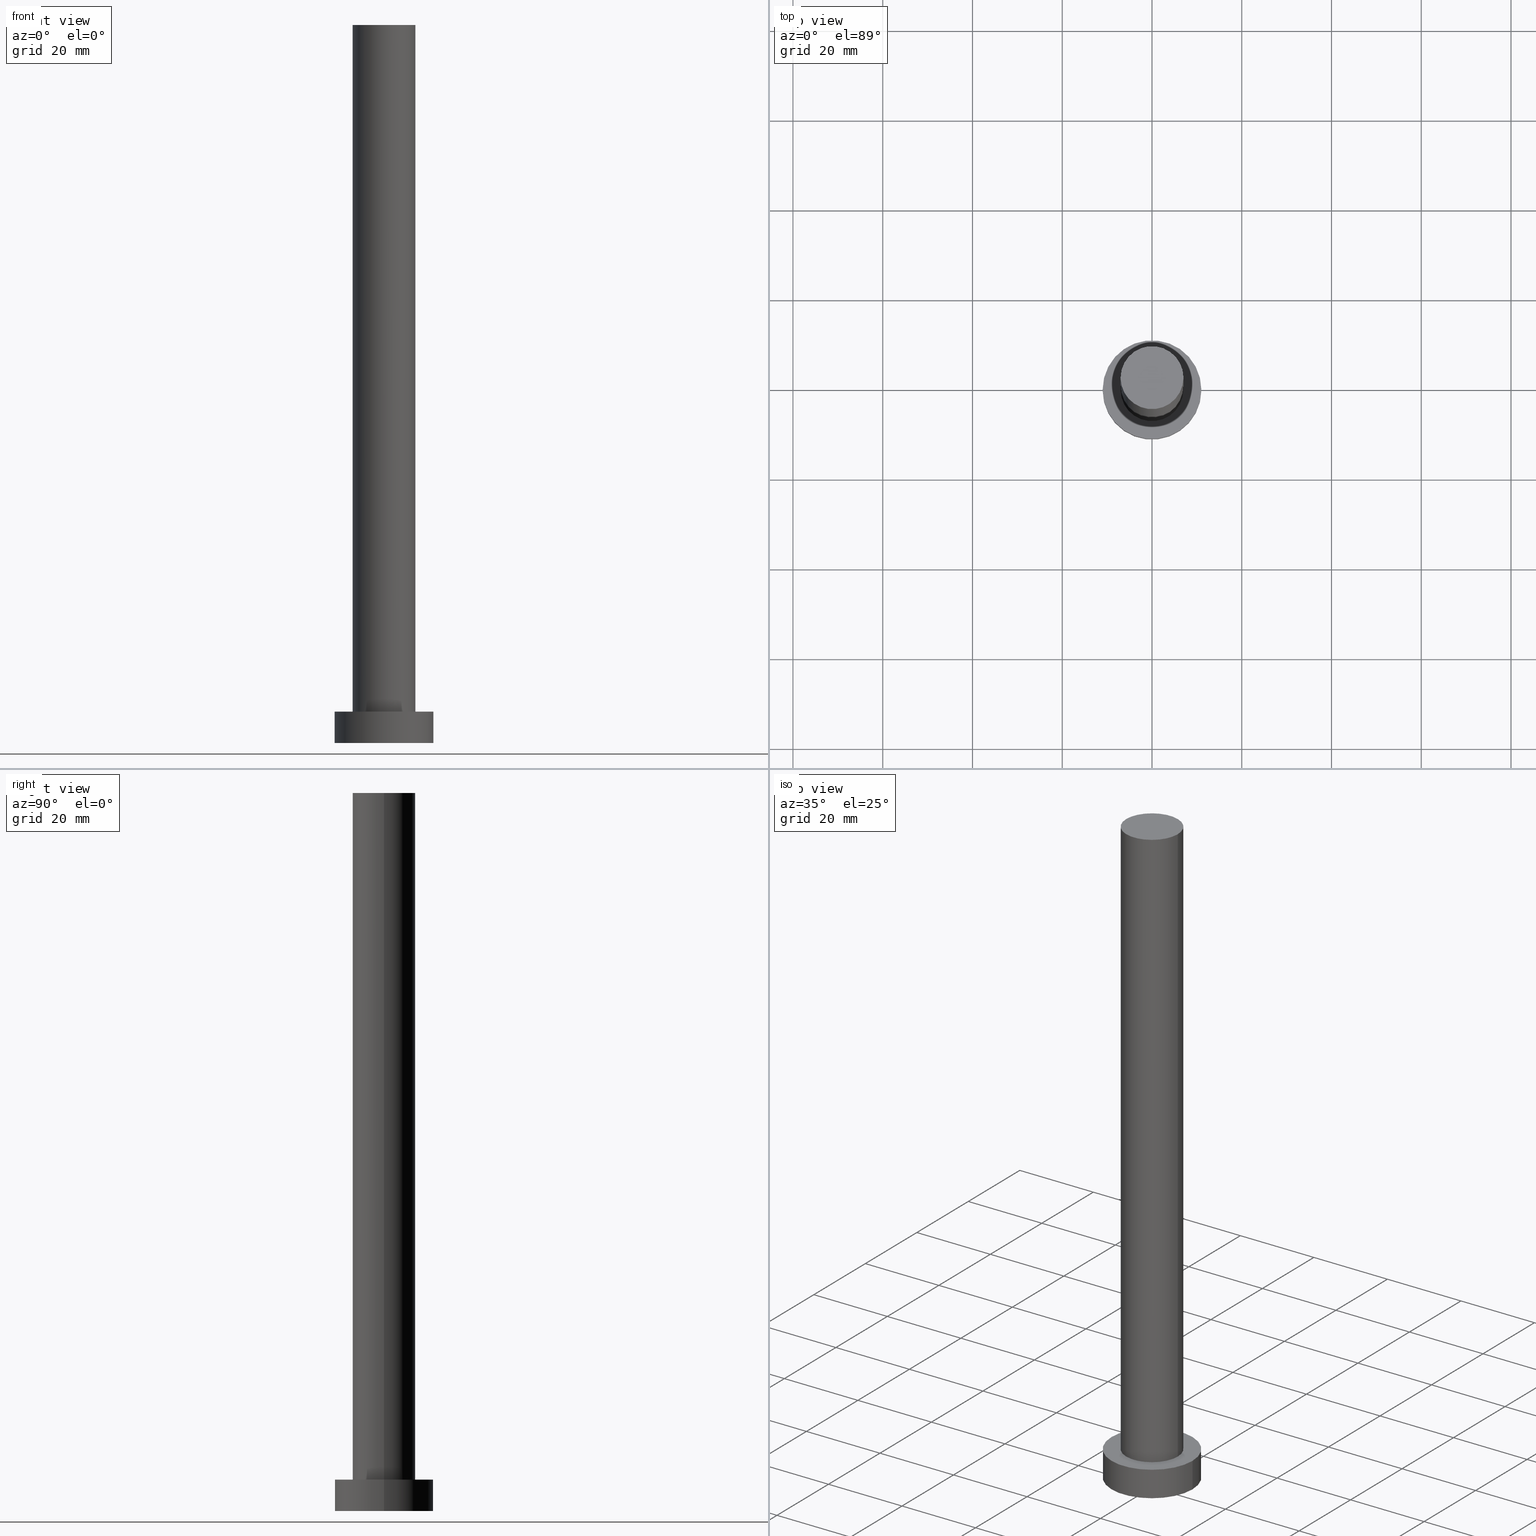
[diagram: canonical four-view strip — front | top / right | iso, engineering-drawing reading convention]
A machine part, canonical four-view strip (front | top / right | iso — engineering-drawing reading convention). The complete STEP part file that produces these views, byte-faithful:
ISO-10303-21;
HEADER;
FILE_DESCRIPTION (( 'STEP AP203' ),
    '1' );
FILE_NAME ('a273.STEP',
    '2023-02-12T10:48:04',
    ( '' ),
    ( '' ),
    'SwSTEP 2.0',
    'SolidWorks 2019',
    '' );
FILE_SCHEMA (( 'CONFIG_CONTROL_DESIGN' ));
ENDSEC;

DATA;
#1 = CARTESIAN_POINT ( 'NONE',  ( 7.000000000000000000, 8.572527594031473190E-16, 7.000000000000000000 ) ) ;
#2 = PERSON_AND_ORGANIZATION_ROLE ( 'creator' ) ;
#3 = ADVANCED_FACE ( 'NONE', ( #145, #10 ), #228, .T. ) ;
#4 = PERSON_AND_ORGANIZATION ( #49, #208 ) ;
#5 = ORIENTED_EDGE ( 'NONE', *, *, #206, .T. ) ;
#6 = EDGE_LOOP ( 'NONE', ( #242, #127, #149, #130 ) ) ;
#7 = DATE_AND_TIME ( #188, #246 ) ;
#8 = CARTESIAN_POINT ( 'NONE',  ( -11.00000000000000000, 0.000000000000000000, 7.000000000000000000 ) ) ;
#9 = VECTOR ( 'NONE', #216, 1000.000000000000000 ) ;
#10 = FACE_OUTER_BOUND ( 'NONE', #32, .T. ) ;
#11 = CC_DESIGN_PERSON_AND_ORGANIZATION_ASSIGNMENT ( #121, #2, ( #45 ) ) ;
#12 = CARTESIAN_POINT ( 'NONE',  ( 0.000000000000000000, 0.000000000000000000, 160.0000000000000000 ) ) ;
#13 = CARTESIAN_POINT ( 'NONE',  ( 0.000000000000000000, 0.000000000000000000, 7.000000000000000000 ) ) ;
#14 = CARTESIAN_POINT ( 'NONE',  ( 0.000000000000000000, 0.000000000000000000, 0.000000000000000000 ) ) ;
#15 = AXIS2_PLACEMENT_3D ( 'NONE', #196, #111, #195 ) ;
#16 = CARTESIAN_POINT ( 'NONE',  ( -11.00000000000000000, 0.000000000000000000, 0.000000000000000000 ) ) ;
#17 = CARTESIAN_POINT ( 'NONE',  ( -7.000000000000000000, 0.000000000000000000, 160.0000000000000000 ) ) ;
#18 =( NAMED_UNIT ( * ) PLANE_ANGLE_UNIT ( ) SI_UNIT ( $, .RADIAN. ) );
#19 = DATE_AND_TIME ( #137, #27 ) ;
#20 = APPROVAL_DATE_TIME ( #209, #129 ) ;
#21 = ADVANCED_FACE ( 'NONE', ( #229 ), #33, .T. ) ;
#22 = CIRCLE ( 'NONE', #115, 11.00000000000000000 ) ;
#23 = AXIS2_PLACEMENT_3D ( 'NONE', #116, #100, #233 ) ;
#24 = DATE_TIME_ROLE ( 'creation_date' ) ;
#25 = ORIENTED_EDGE ( 'NONE', *, *, #220, .F. ) ;
#26 = VERTEX_POINT ( 'NONE', #250 ) ;
#27 = LOCAL_TIME ( 11, 48, 4.000000000000000000, #163 ) ;
#28 = FACE_OUTER_BOUND ( 'NONE', #243, .T. ) ;
#29 = DIRECTION ( 'NONE',  ( 1.000000000000000000, 0.000000000000000000, 0.000000000000000000 ) ) ;
#30 = EDGE_LOOP ( 'NONE', ( #67, #110 ) ) ;
#31 = ADVANCED_FACE ( 'NONE', ( #28 ), #113, .T. ) ;
#32 = EDGE_LOOP ( 'NONE', ( #153, #52 ) ) ;
#33 = CYLINDRICAL_SURFACE ( 'NONE', #165, 11.00000000000000000 ) ;
#34 = CARTESIAN_POINT ( 'NONE',  ( 11.00000000000000000, 1.347111479062088405E-15, 0.000000000000000000 ) ) ;
#35 = UNCERTAINTY_MEASURE_WITH_UNIT (LENGTH_MEASURE( 1.000000000000000082E-05 ), #36, 'distance_accuracy_value', 'NONE');
#36 =( LENGTH_UNIT ( ) NAMED_UNIT ( * ) SI_UNIT ( .MILLI., .METRE. ) );
#37 = AXIS2_PLACEMENT_3D ( 'NONE', #86, #162, #222 ) ;
#38 = CIRCLE ( 'NONE', #204, 11.00000000000000000 ) ;
#39 = CARTESIAN_POINT ( 'NONE',  ( -7.000000000000000000, 0.000000000000000000, 160.0000000000000000 ) ) ;
#40 = PERSON_AND_ORGANIZATION ( #49, #208 ) ;
#41 = PERSON_AND_ORGANIZATION_ROLE ( 'creator' ) ;
#42 = APPROVAL_DATE_TIME ( #184, #192 ) ;
#43 = ADVANCED_FACE ( 'NONE', ( #50 ), #168, .T. ) ;
#44 = VECTOR ( 'NONE', #235, 1000.000000000000000 ) ;
#45 = PRODUCT_DEFINITION ( 'NEZN�M�', '', #104, #97 ) ;
#46 = LINE ( 'NONE', #8, #147 ) ;
#47 = APPROVAL_DATE_TIME ( #7, #80 ) ;
#48 = CC_DESIGN_SECURITY_CLASSIFICATION ( #238, ( #104 ) ) ;
#49 = PERSON ( 'NEUR�EN�', 'NEUR�EN�', 'NEUR�EN�', ('NEUR�EN�'), ('NEUR�EN�'), ('NEUR�EN�') ) ;
#50 = FACE_OUTER_BOUND ( 'NONE', #247, .T. ) ;
#51 = EDGE_CURVE ( 'NONE', #26, #248, #154, .T. ) ;
#52 = ORIENTED_EDGE ( 'NONE', *, *, #93, .T. ) ;
#53 = CARTESIAN_POINT ( 'NONE',  ( 0.000000000000000000, 0.000000000000000000, 160.0000000000000000 ) ) ;
#54 = DIRECTION ( 'NONE',  ( -0.000000000000000000, -0.000000000000000000, -1.000000000000000000 ) ) ;
#55 = DIRECTION ( 'NONE',  ( 0.000000000000000000, 0.000000000000000000, 1.000000000000000000 ) ) ;
#56 = DIRECTION ( 'NONE',  ( 1.000000000000000000, 0.000000000000000000, -0.000000000000000000 ) ) ;
#57 = CARTESIAN_POINT ( 'NONE',  ( 0.000000000000000000, 0.000000000000000000, 7.000000000000000000 ) ) ;
#58 = LINE ( 'NONE', #219, #177 ) ;
#59 = CC_DESIGN_PERSON_AND_ORGANIZATION_ASSIGNMENT ( #40, #119, ( #152 ) ) ;
#60 = DIRECTION ( 'NONE',  ( 1.000000000000000000, 0.000000000000000000, 0.000000000000000000 ) ) ;
#61 = PERSON_AND_ORGANIZATION_ROLE ( 'design_supplier' ) ;
#62 =( GEOMETRIC_REPRESENTATION_CONTEXT ( 3 ) GLOBAL_UNCERTAINTY_ASSIGNED_CONTEXT ( ( #35 ) ) GLOBAL_UNIT_ASSIGNED_CONTEXT ( ( #36, #18, #215 ) ) REPRESENTATION_CONTEXT ( 'NONE', 'WORKASPACE' ) );
#63 = PERSON_AND_ORGANIZATION ( #49, #208 ) ;
#64 = EDGE_CURVE ( 'NONE', #226, #164, #161, .T. ) ;
#65 = PERSON_AND_ORGANIZATION ( #49, #208 ) ;
#66 = ORIENTED_EDGE ( 'NONE', *, *, #206, .F. ) ;
#67 = ORIENTED_EDGE ( 'NONE', *, *, #255, .F. ) ;
#68 = PERSON_AND_ORGANIZATION ( #49, #208 ) ;
#69 = ORIENTED_EDGE ( 'NONE', *, *, #98, .T. ) ;
#70 = AXIS2_PLACEMENT_3D ( 'NONE', #155, #102, #78 ) ;
#71 = AXIS2_PLACEMENT_3D ( 'NONE', #75, #190, #29 ) ;
#72 = CARTESIAN_POINT ( 'NONE',  ( 0.000000000000000000, 0.000000000000000000, 7.000000000000000000 ) ) ;
#73 = ORIENTED_EDGE ( 'NONE', *, *, #150, .T. ) ;
#74 = APPLICATION_CONTEXT ( 'configuration controlled 3d designs of mechanical parts and assemblies' ) ;
#75 = CARTESIAN_POINT ( 'NONE',  ( 0.000000000000000000, 0.000000000000000000, 7.000000000000000000 ) ) ;
#76 = PLANE ( 'NONE',  #234 ) ;
#77 = PRODUCT_RELATED_PRODUCT_CATEGORY ( 'detail', '', ( #152 ) ) ;
#78 = DIRECTION ( 'NONE',  ( 1.000000000000000000, 0.000000000000000000, 0.000000000000000000 ) ) ;
#79 = DIRECTION ( 'NONE',  ( 0.000000000000000000, 0.000000000000000000, 1.000000000000000000 ) ) ;
#80 = APPROVAL ( #202, 'NEUR�EN�' ) ;
#81 = DIRECTION ( 'NONE',  ( -0.000000000000000000, -0.000000000000000000, -1.000000000000000000 ) ) ;
#82 = APPLICATION_PROTOCOL_DEFINITION ( 'international standard', 'config_control_design', 1994, #199 ) ;
#83 = SHAPE_DEFINITION_REPRESENTATION ( #252, #156 ) ;
#84 = CC_DESIGN_APPROVAL ( #129, ( #238 ) ) ;
#85 = CLOSED_SHELL ( 'NONE', ( #31, #21, #197, #3, #187, #43, #180 ) ) ;
#86 = CARTESIAN_POINT ( 'NONE',  ( 0.000000000000000000, 0.000000000000000000, 0.000000000000000000 ) ) ;
#87 = ORIENTED_EDGE ( 'NONE', *, *, #51, .T. ) ;
#88 = PERSON_AND_ORGANIZATION ( #49, #208 ) ;
#89 = APPROVAL_PERSON_ORGANIZATION ( #63, #129, #108 ) ;
#90 = EDGE_LOOP ( 'NONE', ( #227, #170, #69, #122 ) ) ;
#91 = APPROVAL_ROLE ( '' ) ;
#92 = DIRECTION ( 'NONE',  ( -0.000000000000000000, -0.000000000000000000, -1.000000000000000000 ) ) ;
#93 = EDGE_CURVE ( 'NONE', #164, #226, #22, .T. ) ;
#94 = AXIS2_PLACEMENT_3D ( 'NONE', #131, #251, #132 ) ;
#95 = ORIENTED_EDGE ( 'NONE', *, *, #51, .F. ) ;
#96 = DIRECTION ( 'NONE',  ( 0.000000000000000000, 0.000000000000000000, 1.000000000000000000 ) ) ;
#97 = DESIGN_CONTEXT ( 'detailed design', #74, 'design' ) ;
#98 = EDGE_CURVE ( 'NONE', #226, #123, #46, .T. ) ;
#99 = CARTESIAN_POINT ( 'NONE',  ( -7.000000000000000000, 0.000000000000000000, 7.000000000000000000 ) ) ;
#100 = DIRECTION ( 'NONE',  ( 0.000000000000000000, 0.000000000000000000, 1.000000000000000000 ) ) ;
#101 = CC_DESIGN_PERSON_AND_ORGANIZATION_ASSIGNMENT ( #68, #61, ( #104 ) ) ;
#102 = DIRECTION ( 'NONE',  ( 0.000000000000000000, 0.000000000000000000, 1.000000000000000000 ) ) ;
#103 = APPROVAL_STATUS ( 'not_yet_approved' ) ;
#104 = PRODUCT_DEFINITION_FORMATION_WITH_SPECIFIED_SOURCE ( 'LIBOVOLN�', '', #152, .NOT_KNOWN. ) ;
#105 = COORDINATED_UNIVERSAL_TIME_OFFSET ( 1, 0, .AHEAD. ) ;
#106 = MANIFOLD_SOLID_BREP ( 'P�idat vysunut�m3', #85 ) ;
#107 = EDGE_LOOP ( 'NONE', ( #167, #87 ) ) ;
#108 = APPROVAL_ROLE ( '' ) ;
#109 = DIRECTION ( 'NONE',  ( 0.000000000000000000, 0.000000000000000000, 1.000000000000000000 ) ) ;
#110 = ORIENTED_EDGE ( 'NONE', *, *, #150, .F. ) ;
#111 = DIRECTION ( 'NONE',  ( -0.000000000000000000, -0.000000000000000000, -1.000000000000000000 ) ) ;
#112 = CC_DESIGN_DATE_AND_TIME_ASSIGNMENT ( #120, #24, ( #45 ) ) ;
#113 = CYLINDRICAL_SURFACE ( 'NONE', #176, 7.000000000000000000 ) ;
#114 = CARTESIAN_POINT ( 'NONE',  ( 7.000000000000000000, 8.572527594031473190E-16, 160.0000000000000000 ) ) ;
#115 = AXIS2_PLACEMENT_3D ( 'NONE', #13, #109, #191 ) ;
#116 = CARTESIAN_POINT ( 'NONE',  ( 0.000000000000000000, 0.000000000000000000, 0.000000000000000000 ) ) ;
#117 = CARTESIAN_POINT ( 'NONE',  ( -11.00000000000000000, 0.000000000000000000, 7.000000000000000000 ) ) ;
#118 = APPROVAL_PERSON_ORGANIZATION ( #65, #80, #203 ) ;
#119 = PERSON_AND_ORGANIZATION_ROLE ( 'design_owner' ) ;
#120 = DATE_AND_TIME ( #205, #185 ) ;
#121 = PERSON_AND_ORGANIZATION ( #49, #208 ) ;
#122 = ORIENTED_EDGE ( 'NONE', *, *, #232, .T. ) ;
#123 = VERTEX_POINT ( 'NONE', #16 ) ;
#124 = AXIS2_PLACEMENT_3D ( 'NONE', #12, #96, #210 ) ;
#125 = CALENDAR_DATE ( 2023, 12, 2 ) ;
#126 = ORIENTED_EDGE ( 'NONE', *, *, #232, .F. ) ;
#127 = ORIENTED_EDGE ( 'NONE', *, *, #201, .T. ) ;
#128 = DIRECTION ( 'NONE',  ( -0.000000000000000000, -0.000000000000000000, -1.000000000000000000 ) ) ;
#129 = APPROVAL ( #103, 'NEUR�EN�' ) ;
#130 = ORIENTED_EDGE ( 'NONE', *, *, #98, .F. ) ;
#131 = CARTESIAN_POINT ( 'NONE',  ( 0.000000000000000000, 0.000000000000000000, 7.000000000000000000 ) ) ;
#132 = DIRECTION ( 'NONE',  ( 1.000000000000000000, 0.000000000000000000, 0.000000000000000000 ) ) ;
#133 = LINE ( 'NONE', #114, #44 ) ;
#134 = DIRECTION ( 'NONE',  ( 0.000000000000000000, 0.000000000000000000, 1.000000000000000000 ) ) ;
#135 = CARTESIAN_POINT ( 'NONE',  ( 0.000000000000000000, 0.000000000000000000, 7.000000000000000000 ) ) ;
#136 = EDGE_CURVE ( 'NONE', #143, #123, #38, .T. ) ;
#137 = CALENDAR_DATE ( 2023, 12, 2 ) ;
#138 = LOCAL_TIME ( 11, 48, 4.000000000000000000, #225 ) ;
#139 = CC_DESIGN_PERSON_AND_ORGANIZATION_ASSIGNMENT ( #4, #41, ( #104 ) ) ;
#140 = APPROVAL_STATUS ( 'not_yet_approved' ) ;
#141 = ORIENTED_EDGE ( 'NONE', *, *, #220, .T. ) ;
#142 = CIRCLE ( 'NONE', #194, 11.00000000000000000 ) ;
#143 = VERTEX_POINT ( 'NONE', #34 ) ;
#144 = COORDINATED_UNIVERSAL_TIME_OFFSET ( 1, 0, .AHEAD. ) ;
#145 = FACE_BOUND ( 'NONE', #30, .T. ) ;
#146 = AXIS2_PLACEMENT_3D ( 'NONE', #57, #81, #231 ) ;
#147 = VECTOR ( 'NONE', #92, 1000.000000000000000 ) ;
#148 = APPLICATION_PROTOCOL_DEFINITION ( 'international standard', 'config_control_design', 1994, #74 ) ;
#149 = ORIENTED_EDGE ( 'NONE', *, *, #136, .T. ) ;
#150 = EDGE_CURVE ( 'NONE', #173, #151, #218, .T. ) ;
#151 = VERTEX_POINT ( 'NONE', #99 ) ;
#152 = PRODUCT ( 'a273', 'a273', '', ( #237 ) ) ;
#153 = ORIENTED_EDGE ( 'NONE', *, *, #64, .T. ) ;
#154 = CIRCLE ( 'NONE', #124, 7.000000000000000000 ) ;
#155 = CARTESIAN_POINT ( 'NONE',  ( 0.000000000000000000, 0.000000000000000000, 160.0000000000000000 ) ) ;
#156 = ADVANCED_BREP_SHAPE_REPRESENTATION ( 'a273', ( #106, #37 ), #62 ) ;
#157 = DIRECTION ( 'NONE',  ( -0.000000000000000000, -0.000000000000000000, -1.000000000000000000 ) ) ;
#158 = CARTESIAN_POINT ( 'NONE',  ( 0.000000000000000000, 0.000000000000000000, 0.000000000000000000 ) ) ;
#159 = FACE_OUTER_BOUND ( 'NONE', #107, .T. ) ;
#160 = CIRCLE ( 'NONE', #241, 7.000000000000000000 ) ;
#161 = CIRCLE ( 'NONE', #71, 11.00000000000000000 ) ;
#162 = DIRECTION ( 'NONE',  ( 0.000000000000000000, 0.000000000000000000, 1.000000000000000000 ) ) ;
#163 = COORDINATED_UNIVERSAL_TIME_OFFSET ( 1, 0, .AHEAD. ) ;
#164 = VERTEX_POINT ( 'NONE', #178 ) ;
#165 = AXIS2_PLACEMENT_3D ( 'NONE', #72, #54, #224 ) ;
#166 = CC_DESIGN_APPROVAL ( #80, ( #104 ) ) ;
#167 = ORIENTED_EDGE ( 'NONE', *, *, #249, .T. ) ;
#168 = CYLINDRICAL_SURFACE ( 'NONE', #15, 7.000000000000000000 ) ;
#169 = SECURITY_CLASSIFICATION_LEVEL ( 'unclassified' ) ;
#170 = ORIENTED_EDGE ( 'NONE', *, *, #64, .F. ) ;
#171 = APPROVAL_PERSON_ORGANIZATION ( #240, #192, #91 ) ;
#172 = CC_DESIGN_PERSON_AND_ORGANIZATION_ASSIGNMENT ( #88, #245, ( #238 ) ) ;
#173 = VERTEX_POINT ( 'NONE', #1 ) ;
#174 = ORIENTED_EDGE ( 'NONE', *, *, #249, .F. ) ;
#175 = CARTESIAN_POINT ( 'NONE',  ( 0.000000000000000000, 0.000000000000000000, 160.0000000000000000 ) ) ;
#176 = AXIS2_PLACEMENT_3D ( 'NONE', #53, #128, #214 ) ;
#177 = VECTOR ( 'NONE', #157, 1000.000000000000000 ) ;
#178 = CARTESIAN_POINT ( 'NONE',  ( 11.00000000000000000, 1.347111479062088405E-15, 7.000000000000000000 ) ) ;
#179 = LINE ( 'NONE', #39, #9 ) ;
#180 = ADVANCED_FACE ( 'NONE', ( #159 ), #76, .T. ) ;
#181 = DIRECTION ( 'NONE',  ( 1.000000000000000000, 0.000000000000000000, 0.000000000000000000 ) ) ;
#182 = CALENDAR_DATE ( 2023, 12, 2 ) ;
#183 = DATE_TIME_ROLE ( 'classification_date' ) ;
#184 = DATE_AND_TIME ( #182, #230 ) ;
#185 = LOCAL_TIME ( 11, 48, 4.000000000000000000, #144 ) ;
#186 = AXIS2_PLACEMENT_3D ( 'NONE', #244, #212, #207 ) ;
#187 = ADVANCED_FACE ( 'NONE', ( #254 ), #236, .F. ) ;
#188 = CALENDAR_DATE ( 2023, 12, 2 ) ;
#189 = EDGE_LOOP ( 'NONE', ( #126, #211 ) ) ;
#190 = DIRECTION ( 'NONE',  ( 0.000000000000000000, 0.000000000000000000, 1.000000000000000000 ) ) ;
#191 = DIRECTION ( 'NONE',  ( 1.000000000000000000, 0.000000000000000000, 0.000000000000000000 ) ) ;
#192 = APPROVAL ( #140, 'NEUR�EN�' ) ;
#193 = ORIENTED_EDGE ( 'NONE', *, *, #255, .T. ) ;
#194 = AXIS2_PLACEMENT_3D ( 'NONE', #14, #55, #60 ) ;
#195 = DIRECTION ( 'NONE',  ( -1.000000000000000000, 0.000000000000000000, 0.000000000000000000 ) ) ;
#196 = CARTESIAN_POINT ( 'NONE',  ( 0.000000000000000000, 0.000000000000000000, 160.0000000000000000 ) ) ;
#197 = ADVANCED_FACE ( 'NONE', ( #221 ), #200, .T. ) ;
#198 = DIRECTION ( 'NONE',  ( 1.000000000000000000, 0.000000000000000000, 0.000000000000000000 ) ) ;
#199 = APPLICATION_CONTEXT ( 'configuration controlled 3d designs of mechanical parts and assemblies' ) ;
#200 = CYLINDRICAL_SURFACE ( 'NONE', #146, 11.00000000000000000 ) ;
#201 = EDGE_CURVE ( 'NONE', #164, #143, #58, .T. ) ;
#202 = APPROVAL_STATUS ( 'not_yet_approved' ) ;
#203 = APPROVAL_ROLE ( '' ) ;
#204 = AXIS2_PLACEMENT_3D ( 'NONE', #158, #79, #198 ) ;
#205 = CALENDAR_DATE ( 2023, 12, 2 ) ;
#206 = EDGE_CURVE ( 'NONE', #26, #173, #133, .T. ) ;
#207 = DIRECTION ( 'NONE',  ( 1.000000000000000000, 0.000000000000000000, -0.000000000000000000 ) ) ;
#208 = ORGANIZATION ( 'NEUR�EN�', 'NEUR�EN�', '' ) ;
#209 = DATE_AND_TIME ( #125, #138 ) ;
#210 = DIRECTION ( 'NONE',  ( 1.000000000000000000, 0.000000000000000000, 0.000000000000000000 ) ) ;
#211 = ORIENTED_EDGE ( 'NONE', *, *, #136, .F. ) ;
#212 = DIRECTION ( 'NONE',  ( 0.000000000000000000, 0.000000000000000000, 1.000000000000000000 ) ) ;
#213 = CIRCLE ( 'NONE', #70, 7.000000000000000000 ) ;
#214 = DIRECTION ( 'NONE',  ( -1.000000000000000000, 0.000000000000000000, 0.000000000000000000 ) ) ;
#215 =( NAMED_UNIT ( * ) SI_UNIT ( $, .STERADIAN. ) SOLID_ANGLE_UNIT ( ) );
#216 = DIRECTION ( 'NONE',  ( -0.000000000000000000, -0.000000000000000000, -1.000000000000000000 ) ) ;
#217 = CC_DESIGN_APPROVAL ( #192, ( #45 ) ) ;
#218 = CIRCLE ( 'NONE', #94, 7.000000000000000000 ) ;
#219 = CARTESIAN_POINT ( 'NONE',  ( 11.00000000000000000, 1.347111479062088405E-15, 7.000000000000000000 ) ) ;
#220 = EDGE_CURVE ( 'NONE', #248, #151, #179, .T. ) ;
#221 = FACE_OUTER_BOUND ( 'NONE', #90, .T. ) ;
#222 = DIRECTION ( 'NONE',  ( 1.000000000000000000, 0.000000000000000000, 0.000000000000000000 ) ) ;
#223 = CC_DESIGN_DATE_AND_TIME_ASSIGNMENT ( #19, #183, ( #238 ) ) ;
#224 = DIRECTION ( 'NONE',  ( -1.000000000000000000, 0.000000000000000000, 0.000000000000000000 ) ) ;
#225 = COORDINATED_UNIVERSAL_TIME_OFFSET ( 1, 0, .AHEAD. ) ;
#226 = VERTEX_POINT ( 'NONE', #117 ) ;
#227 = ORIENTED_EDGE ( 'NONE', *, *, #201, .F. ) ;
#228 = PLANE ( 'NONE',  #186 ) ;
#229 = FACE_OUTER_BOUND ( 'NONE', #6, .T. ) ;
#230 = LOCAL_TIME ( 11, 48, 4.000000000000000000, #239 ) ;
#231 = DIRECTION ( 'NONE',  ( -1.000000000000000000, 0.000000000000000000, 0.000000000000000000 ) ) ;
#232 = EDGE_CURVE ( 'NONE', #123, #143, #142, .T. ) ;
#233 = DIRECTION ( 'NONE',  ( 1.000000000000000000, 0.000000000000000000, -0.000000000000000000 ) ) ;
#234 = AXIS2_PLACEMENT_3D ( 'NONE', #175, #253, #56 ) ;
#235 = DIRECTION ( 'NONE',  ( -0.000000000000000000, -0.000000000000000000, -1.000000000000000000 ) ) ;
#236 = PLANE ( 'NONE',  #23 ) ;
#237 = MECHANICAL_CONTEXT ( 'NONE', #199, 'mechanical' ) ;
#238 = SECURITY_CLASSIFICATION ( '', '', #169 ) ;
#239 = COORDINATED_UNIVERSAL_TIME_OFFSET ( 1, 0, .AHEAD. ) ;
#240 = PERSON_AND_ORGANIZATION ( #49, #208 ) ;
#241 = AXIS2_PLACEMENT_3D ( 'NONE', #135, #134, #181 ) ;
#242 = ORIENTED_EDGE ( 'NONE', *, *, #93, .F. ) ;
#243 = EDGE_LOOP ( 'NONE', ( #95, #5, #73, #25 ) ) ;
#244 = CARTESIAN_POINT ( 'NONE',  ( 0.000000000000000000, 0.000000000000000000, 7.000000000000000000 ) ) ;
#245 = PERSON_AND_ORGANIZATION_ROLE ( 'classification_officer' ) ;
#246 = LOCAL_TIME ( 11, 48, 4.000000000000000000, #105 ) ;
#247 = EDGE_LOOP ( 'NONE', ( #66, #174, #141, #193 ) ) ;
#248 = VERTEX_POINT ( 'NONE', #17 ) ;
#249 = EDGE_CURVE ( 'NONE', #248, #26, #213, .T. ) ;
#250 = CARTESIAN_POINT ( 'NONE',  ( 7.000000000000000000, 8.572527594031473190E-16, 160.0000000000000000 ) ) ;
#251 = DIRECTION ( 'NONE',  ( 0.000000000000000000, 0.000000000000000000, 1.000000000000000000 ) ) ;
#252 = PRODUCT_DEFINITION_SHAPE ( 'NONE', 'NONE',  #45 ) ;
#253 = DIRECTION ( 'NONE',  ( 0.000000000000000000, 0.000000000000000000, 1.000000000000000000 ) ) ;
#254 = FACE_OUTER_BOUND ( 'NONE', #189, .T. ) ;
#255 = EDGE_CURVE ( 'NONE', #151, #173, #160, .T. ) ;
ENDSEC;
END-ISO-10303-21;
